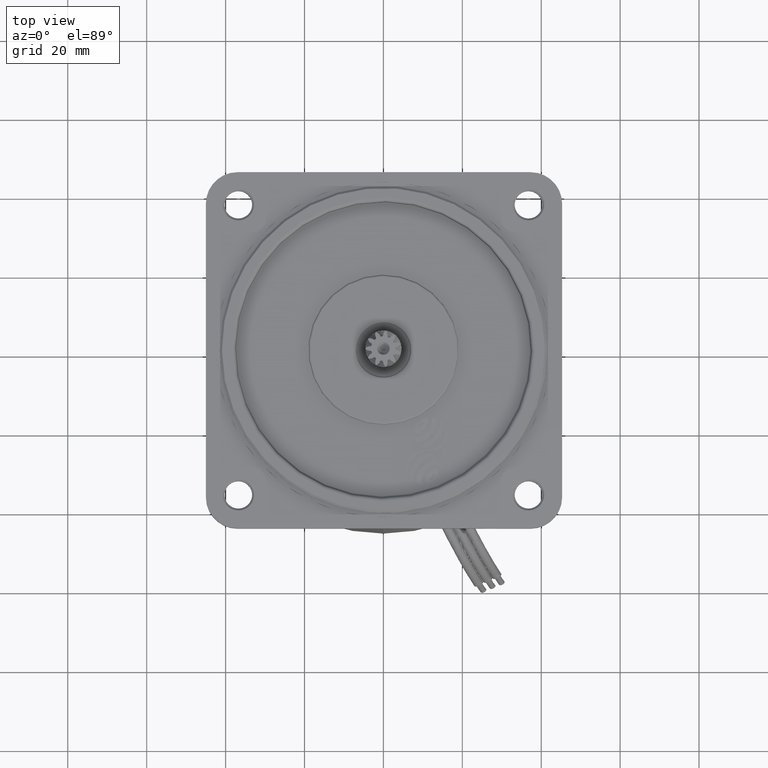
[diagram: clean part render]
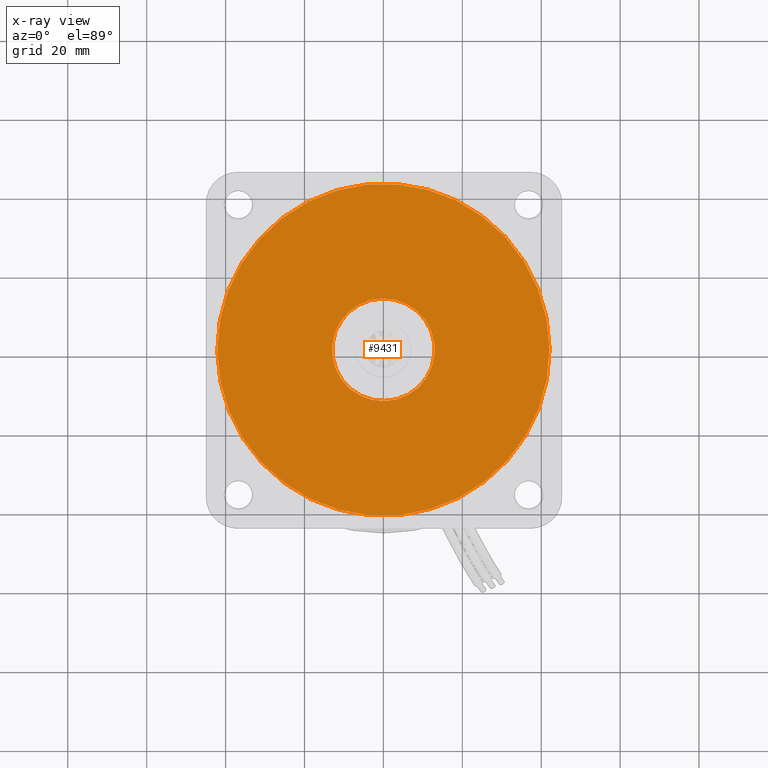
[diagram: x-ray — body ghosted, one internal face saturated and labeled with its STEP entity id]
A machine part, top view, then the same camera in x-ray: the body is ghosted and one INTERNAL B-rep face — a face not visible from any outside direction — is saturated and labeled: STEP entity #9431.
In plain terms, the highlighted planar face has unit normal (-0, -0, -1).
Its self-contained STEP definition (entity closure, byte-faithful):
#223 = CIRCLE ( 'NONE', #481, 13.00000000000000000 ) ;
#481 = AXIS2_PLACEMENT_3D ( 'NONE', #493, #492, #485 ) ;
#485 = DIRECTION ( 'NONE',  ( 1.000000000000000000, 0.0000000000000000000, 0.0000000000000000000 ) ) ;
#492 = DIRECTION ( 'NONE',  ( -0.0000000000000000000, -0.0000000000000000000, -1.000000000000000000 ) ) ;
#493 = CARTESIAN_POINT ( 'NONE',  ( 0.0000000000000000000, 0.0000000000000000000, -19.50000000000000000 ) ) ;
#909 = DIRECTION ( 'NONE',  ( 1.000000000000000000, 0.0000000000000000000, 0.0000000000000000000 ) ) ;
#910 = DIRECTION ( 'NONE',  ( 0.0000000000000000000, 0.0000000000000000000, 1.000000000000000000 ) ) ;
#911 = CARTESIAN_POINT ( 'NONE',  ( 0.0000000000000000000, 0.0000000000000000000, -19.50000000000000000 ) ) ;
#912 = AXIS2_PLACEMENT_3D ( 'NONE', #911, #910, #909 ) ;
#923 = CARTESIAN_POINT ( 'NONE',  ( 42.10999999999999900, 0.0000000000000000000, -19.50000000000000000 ) ) ;
#927 = CARTESIAN_POINT ( 'NONE',  ( 13.00000000000000000, 0.0000000000000000000, -19.50000000000000000 ) ) ;
#931 = CIRCLE ( 'NONE', #912, 42.10999999999999900 ) ;
#964 = CARTESIAN_POINT ( 'NONE',  ( -42.10999999999999900, 5.156987671209505000E-015, -19.50000000000000000 ) ) ;
#968 = CIRCLE ( 'NONE', #1043, 42.10999999999999900 ) ;
#972 = DIRECTION ( 'NONE',  ( -0.0000000000000000000, -0.0000000000000000000, -1.000000000000000000 ) ) ;
#980 = AXIS2_PLACEMENT_3D ( 'NONE', #1036, #972, #1029 ) ;
#989 = CIRCLE ( 'NONE', #980, 13.00000000000000000 ) ;
#1007 = CARTESIAN_POINT ( 'NONE',  ( -13.00000000000000000, 1.592040838891559100E-015, -19.50000000000000000 ) ) ;
#1029 = DIRECTION ( 'NONE',  ( 1.000000000000000000, 0.0000000000000000000, 0.0000000000000000000 ) ) ;
#1036 = CARTESIAN_POINT ( 'NONE',  ( 0.0000000000000000000, 0.0000000000000000000, -19.50000000000000000 ) ) ;
#1040 = DIRECTION ( 'NONE',  ( 1.000000000000000000, 0.0000000000000000000, 0.0000000000000000000 ) ) ;
#1041 = DIRECTION ( 'NONE',  ( 0.0000000000000000000, 0.0000000000000000000, 1.000000000000000000 ) ) ;
#1042 = CARTESIAN_POINT ( 'NONE',  ( 0.0000000000000000000, 0.0000000000000000000, -19.50000000000000000 ) ) ;
#1043 = AXIS2_PLACEMENT_3D ( 'NONE', #1042, #1041, #1040 ) ;
#5013 = DIRECTION ( 'NONE',  ( 1.000000000000000000, 0.0000000000000000000, -0.0000000000000000000 ) ) ;
#5022 = FACE_OUTER_BOUND ( 'NONE', #9425, .T. ) ;
#5037 = CARTESIAN_POINT ( 'NONE',  ( 0.0000000000000000000, 0.0000000000000000000, -19.50000000000000000 ) ) ;
#5039 = FACE_BOUND ( 'NONE', #9440, .T. ) ;
#5050 = PLANE ( 'NONE',  #5058 ) ;
#5058 = AXIS2_PLACEMENT_3D ( 'NONE', #5037, #5071, #5013 ) ;
#5071 = DIRECTION ( 'NONE',  ( 0.0000000000000000000, 0.0000000000000000000, 1.000000000000000000 ) ) ;
#5660 = VERTEX_POINT ( 'NONE', #927 ) ;
#5672 = VERTEX_POINT ( 'NONE', #923 ) ;
#5673 = EDGE_CURVE ( 'NONE', #5672, #5682, #931, .T. ) ;
#5682 = VERTEX_POINT ( 'NONE', #964 ) ;
#5739 = EDGE_CURVE ( 'NONE', #5682, #5672, #968, .T. ) ;
#5744 = EDGE_CURVE ( 'NONE', #5765, #5660, #989, .T. ) ;
#5765 = VERTEX_POINT ( 'NONE', #1007 ) ;
#5774 = EDGE_CURVE ( 'NONE', #5660, #5765, #223, .T. ) ;
#9286 = ORIENTED_EDGE ( 'NONE', *, *, #5739, .T. ) ;
#9291 = ORIENTED_EDGE ( 'NONE', *, *, #5774, .T. ) ;
#9294 = ORIENTED_EDGE ( 'NONE', *, *, #5744, .T. ) ;
#9425 = EDGE_LOOP ( 'NONE', ( #9438, #9286 ) ) ;
#9431 = ADVANCED_FACE ( 'NONE', ( #5022, #5039 ), #5050, .T. ) ;
#9438 = ORIENTED_EDGE ( 'NONE', *, *, #5673, .T. ) ;
#9440 = EDGE_LOOP ( 'NONE', ( #9291, #9294 ) ) ;